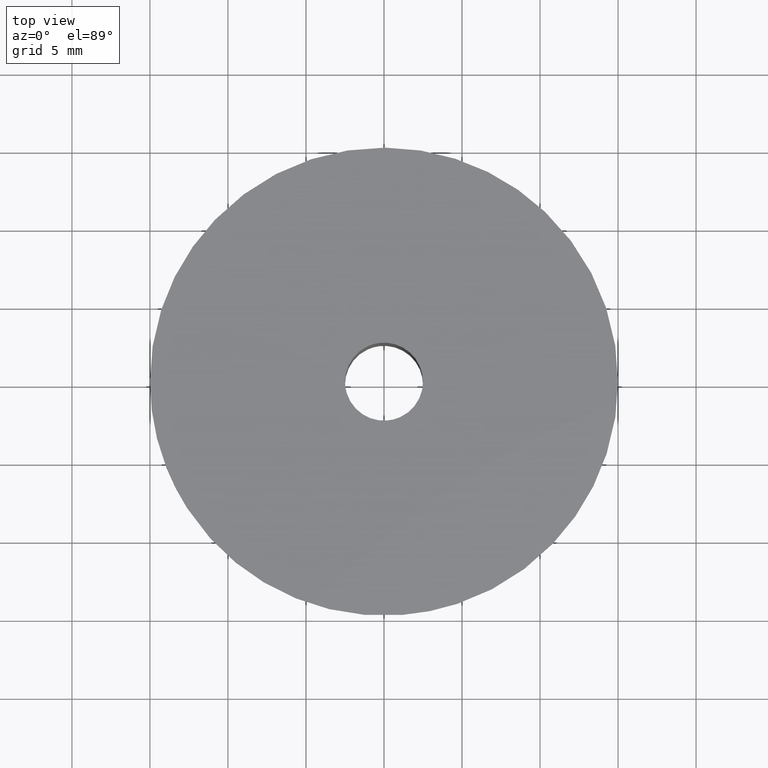
[diagram: clean part render]
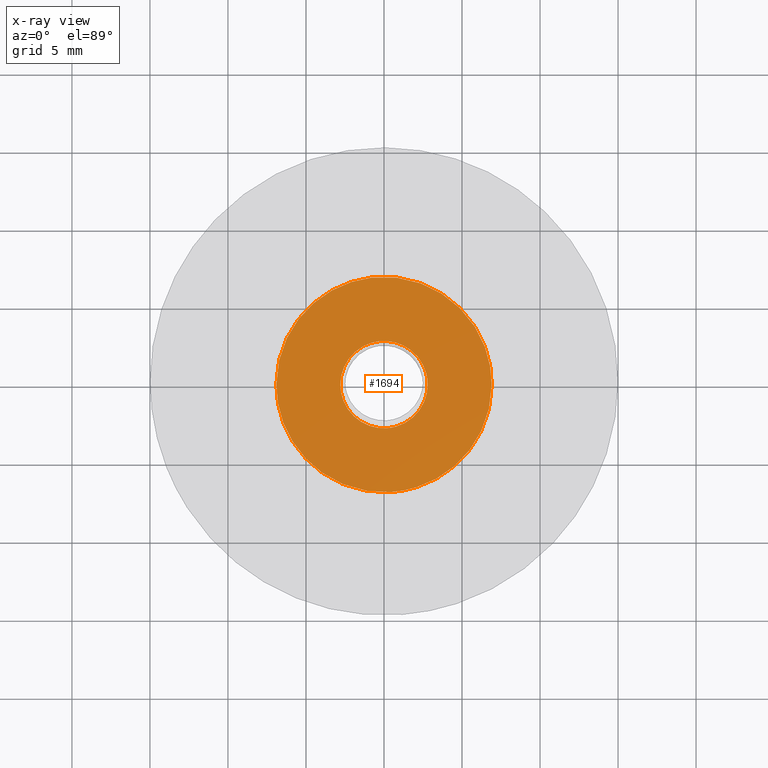
[diagram: x-ray — body ghosted, one internal face saturated and labeled with its STEP entity id]
A machine part, top view, then the same camera in x-ray: the body is ghosted and one INTERNAL B-rep face — a face not visible from any outside direction — is saturated and labeled: STEP entity #1694.
In plain terms, the highlighted face is a freeform B-spline surface patch.
Its self-contained STEP definition (entity closure, byte-faithful):
#1134=CARTESIAN_POINT('',(-0.330495857061675,2.780426673815561,8.800000000000001));
#1135=VERTEX_POINT('',#1134);
#1141=CARTESIAN_POINT('',(2.800000000000000,0.0,8.800000000000001));
#1142=VERTEX_POINT('',#1141);
#1143=CARTESIAN_POINT('',(-0.330495857061675,2.780426673815561,8.800000000000001));
#1144=CARTESIAN_POINT('',(-0.165827535048340,2.800000000000000,8.800000000000001));
#1145=CARTESIAN_POINT('',(0.0,2.800000000000000,8.800000000000001));
#1146=CARTESIAN_POINT('',(2.800000000000000,2.800000000000000,8.800000000000001));
#1147=CARTESIAN_POINT('',(2.800000000000000,0.0,8.800000000000001));
#1155=(BOUNDED_CURVE()B_SPLINE_CURVE(2,(#1143,#1144,#1145,#1146,#1147),.UNSPECIFIED.,.F.,.U.)B_SPLINE_CURVE_WITH_KNOTS((3,2,3),(0.229562473512879,0.250000000000000,0.500000000000000),.UNSPECIFIED.)CURVE()GEOMETRIC_REPRESENTATION_ITEM()RATIONAL_B_SPLINE_CURVE((0.956026754182465,0.976055948330407,1.0,0.707106781186547,1.0))REPRESENTATION_ITEM(''));
#1156=EDGE_CURVE('',#1135,#1142,#1155,.T.);
#1158=CARTESIAN_POINT('',(0.170935910712797,-2.794777435580298,8.800000000000001));
#1159=VERTEX_POINT('',#1158);
#1160=CARTESIAN_POINT('',(2.800000000000000,0.0,8.800000000000001));
#1161=CARTESIAN_POINT('',(2.799999999999999,-2.633976987307233,8.800000000000001));
#1162=CARTESIAN_POINT('',(0.170935910712797,-2.794777435580297,8.800000000000001));
#1170=(BOUNDED_CURVE()B_SPLINE_CURVE(2,(#1160,#1161,#1162),.UNSPECIFIED.,.F.,.U.)B_SPLINE_CURVE_WITH_KNOTS((3,3),(0.500000000000000,0.739332962240091),.UNSPECIFIED.)CURVE()GEOMETRIC_REPRESENTATION_ITEM()RATIONAL_B_SPLINE_CURVE((1.0,0.719603993285365,0.976072041669178))REPRESENTATION_ITEM(''));
#1171=EDGE_CURVE('',#1142,#1159,#1170,.T.);
#1245=CARTESIAN_POINT('',(-2.800000000000000,0.0,8.800000000000001));
#1246=VERTEX_POINT('',#1245);
#1247=CARTESIAN_POINT('',(0.170935910712797,-2.794777435580298,8.800000000000001));
#1248=CARTESIAN_POINT('',(0.085547737251289,-2.800000000000000,8.800000000000001));
#1249=CARTESIAN_POINT('',(0.0,-2.800000000000000,8.800000000000001));
#1250=CARTESIAN_POINT('',(-2.800000000000000,-2.800000000000000,8.800000000000001));
#1251=CARTESIAN_POINT('',(-2.800000000000000,0.0,8.800000000000001));
#1259=(BOUNDED_CURVE()B_SPLINE_CURVE(2,(#1247,#1248,#1249,#1250,#1251),.UNSPECIFIED.,.F.,.U.)B_SPLINE_CURVE_WITH_KNOTS((3,2,3),(0.739332962240092,0.750000000000000,1.0),.UNSPECIFIED.)CURVE()GEOMETRIC_REPRESENTATION_ITEM()RATIONAL_B_SPLINE_CURVE((0.976072041669180,0.987502787901183,1.0,0.707106781186547,1.0))REPRESENTATION_ITEM(''));
#1260=EDGE_CURVE('',#1159,#1246,#1259,.T.);
#1262=CARTESIAN_POINT('',(-2.800000000000000,0.0,8.800000000000001));
#1263=CARTESIAN_POINT('',(-2.799999999999999,2.486888672622845,8.800000000000001));
#1264=CARTESIAN_POINT('',(-0.330495857061675,2.780426673815561,8.800000000000001));
#1272=(BOUNDED_CURVE()B_SPLINE_CURVE(2,(#1262,#1263,#1264),.UNSPECIFIED.,.F.,.U.)B_SPLINE_CURVE_WITH_KNOTS((3,3),(0.0,0.229562473512879),.UNSPECIFIED.)CURVE()GEOMETRIC_REPRESENTATION_ITEM()RATIONAL_B_SPLINE_CURVE((1.0,0.731050832856140,0.956026754182465))REPRESENTATION_ITEM(''));
#1273=EDGE_CURVE('',#1246,#1135,#1272,.T.);
#1305=CARTESIAN_POINT('',(-0.814425810107186,6.851766969163601,8.800000000000050));
#1306=VERTEX_POINT('',#1305);
#1307=CARTESIAN_POINT('',(6.900000000000000,0.0,8.800000000000001));
#1308=VERTEX_POINT('',#1307);
#1309=CARTESIAN_POINT('',(-0.814425810107186,6.851766969163601,8.800000000000050));
#1310=CARTESIAN_POINT('',(-0.408641166065704,6.899999999999999,8.800000000000001));
#1311=CARTESIAN_POINT('',(0.0,6.900000000000000,8.800000000000001));
#1312=CARTESIAN_POINT('',(6.900000000000000,6.900000000000000,8.800000000000001));
#1313=CARTESIAN_POINT('',(6.900000000000000,0.0,8.800000000000001));
#1321=(BOUNDED_CURVE()B_SPLINE_CURVE(2,(#1309,#1310,#1311,#1312,#1313),.UNSPECIFIED.,.F.,.U.)B_SPLINE_CURVE_WITH_KNOTS((3,2,3),(0.229562730261011,0.250000000000000,0.500000000000000),.UNSPECIFIED.)CURVE()GEOMETRIC_REPRESENTATION_ITEM()RATIONAL_B_SPLINE_CURVE((0.956027257419930,0.976056249129555,1.0,0.707106781186548,1.0))REPRESENTATION_ITEM(''));
#1322=EDGE_CURVE('',#1306,#1308,#1321,.T.);
#1363=CARTESIAN_POINT('',(0.421224195389381,-6.887130765210070,8.800000000000228));
#1364=VERTEX_POINT('',#1363);
#1370=CARTESIAN_POINT('',(6.900000000000000,0.0,8.800000000000001));
#1371=CARTESIAN_POINT('',(6.900000000000000,-6.490881990737396,8.800000000000003));
#1372=CARTESIAN_POINT('',(0.421224195389381,-6.887130765210070,8.800000000000228));
#1380=(BOUNDED_CURVE()B_SPLINE_CURVE(2,(#1370,#1371,#1372),.UNSPECIFIED.,.F.,.U.)B_SPLINE_CURVE_WITH_KNOTS((3,3),(0.500000000000000,0.739333231001084),.UNSPECIFIED.)CURVE()GEOMETRIC_REPRESENTATION_ITEM()RATIONAL_B_SPLINE_CURVE((1.0,0.719603678412276,0.976072617675824))REPRESENTATION_ITEM(''));
#1381=EDGE_CURVE('',#1308,#1364,#1380,.T.);
#1408=CARTESIAN_POINT('',(-6.900000000000000,0.0,8.800000000000001));
#1409=VERTEX_POINT('',#1408);
#1410=CARTESIAN_POINT('',(-6.900000000000000,0.0,8.800000000000001));
#1411=CARTESIAN_POINT('',(-6.900000000000001,6.128413604721771,8.800000000000003));
#1412=CARTESIAN_POINT('',(-0.814425810107186,6.851766969163601,8.800000000000050));
#1420=(BOUNDED_CURVE()B_SPLINE_CURVE(2,(#1410,#1411,#1412),.UNSPECIFIED.,.F.,.U.)B_SPLINE_CURVE_WITH_KNOTS((3,3),(0.0,0.229562730261011),.UNSPECIFIED.)CURVE()GEOMETRIC_REPRESENTATION_ITEM()RATIONAL_B_SPLINE_CURVE((1.0,0.731050532056992,0.956027257419930))REPRESENTATION_ITEM(''));
#1421=EDGE_CURVE('',#1409,#1306,#1420,.T.);
#1423=CARTESIAN_POINT('',(0.421224195389381,-6.887130765210070,8.800000000000228));
#1424=CARTESIAN_POINT('',(0.210808688021043,-6.900000000000000,8.800000000000001));
#1425=CARTESIAN_POINT('',(0.0,-6.900000000000000,8.800000000000001));
#1426=CARTESIAN_POINT('',(-6.900000000000000,-6.900000000000000,8.800000000000001));
#1427=CARTESIAN_POINT('',(-6.900000000000000,0.0,8.800000000000001));
#1435=(BOUNDED_CURVE()B_SPLINE_CURVE(2,(#1423,#1424,#1425,#1426,#1427),.UNSPECIFIED.,.F.,.U.)B_SPLINE_CURVE_WITH_KNOTS((3,2,3),(0.739333231001084,0.750000000000000,1.0),.UNSPECIFIED.)CURVE()GEOMETRIC_REPRESENTATION_ITEM()RATIONAL_B_SPLINE_CURVE((0.976072617675824,0.987503102774272,1.0,0.707106781186548,1.0))REPRESENTATION_ITEM(''));
#1436=EDGE_CURVE('',#1364,#1409,#1435,.T.);
#1677=CARTESIAN_POINT('',(-7.589310102797448,-7.589142292475028,8.800000000000001));
#1678=CARTESIAN_POINT('',(7.589310349560679,-7.589142292475028,8.800000000000001));
#1679=CARTESIAN_POINT('',(-7.589310102797448,7.589184488987248,8.800000000000001));
#1680=CARTESIAN_POINT('',(7.589310349560679,7.589184488987248,8.800000000000001));
#1681=B_SPLINE_SURFACE_WITH_KNOTS('',1,1,((#1677,#1679),(#1678,#1680)),.UNSPECIFIED.,.F.,.F.,.U.,(2,2),(2,2),(0.0,15.178620452358130),(0.0,15.178326781462280),.UNSPECIFIED.);
#1682=ORIENTED_EDGE('',*,*,#1421,.T.);
#1683=ORIENTED_EDGE('',*,*,#1322,.T.);
#1684=ORIENTED_EDGE('',*,*,#1381,.T.);
#1685=ORIENTED_EDGE('',*,*,#1436,.T.);
#1686=EDGE_LOOP('',(#1682,#1683,#1684,#1685));
#1687=FACE_OUTER_BOUND('',#1686,.T.);
#1688=ORIENTED_EDGE('',*,*,#1171,.F.);
#1689=ORIENTED_EDGE('',*,*,#1156,.F.);
#1690=ORIENTED_EDGE('',*,*,#1273,.F.);
#1691=ORIENTED_EDGE('',*,*,#1260,.F.);
#1692=EDGE_LOOP('',(#1688,#1689,#1690,#1691));
#1693=FACE_BOUND('',#1692,.T.);
#1694=ADVANCED_FACE('',(#1687,#1693),#1681,.F.);